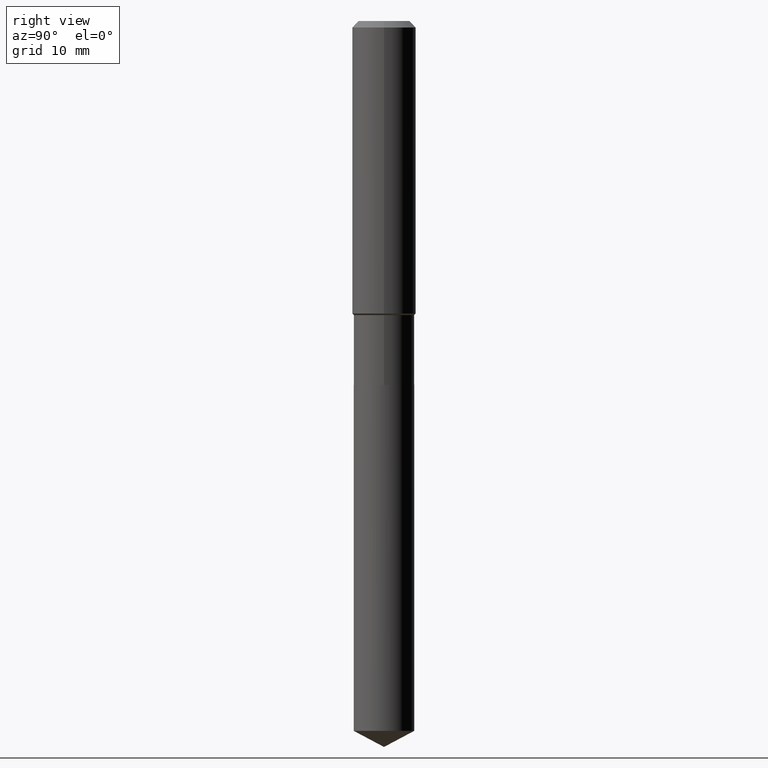
[diagram: clean part render]
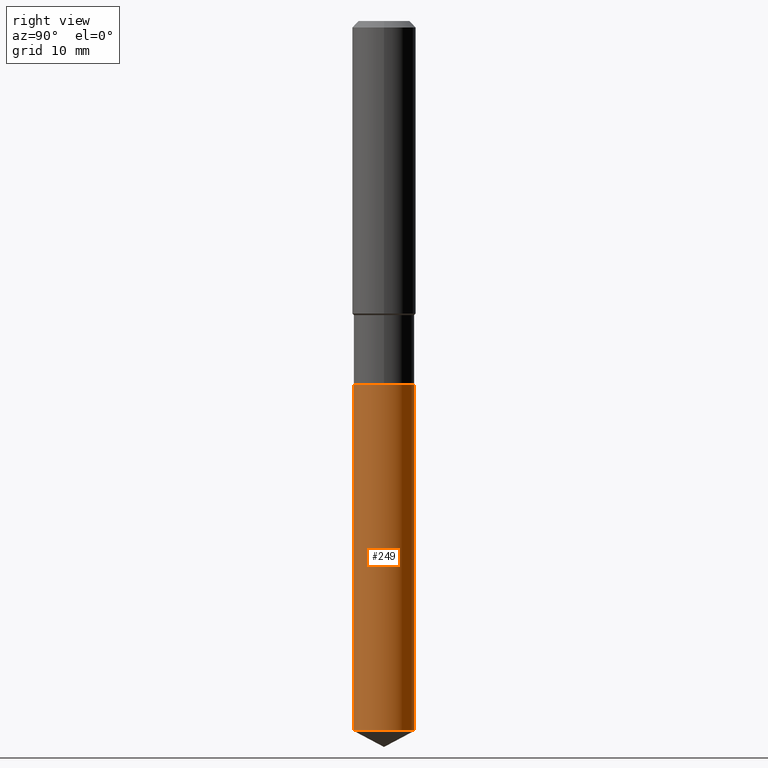
[diagram: same view with one face highlighted and labeled with its STEP entity id]
A machine part, right view. The second image highlights one B-rep face of the part: STEP entity #249.
In plain terms, the highlighted cylindrical surface (edge-blend (fillet) strip) has radius 3.7998 mm, axis along (-0, 0, 1).
Its self-contained STEP definition (entity closure, byte-faithful):
#11 = ORIENTED_EDGE ( 'NONE', *, *, #339, .T. ) ;
#13 = CYLINDRICAL_SURFACE ( 'NONE', #444, 0.1496000000000000107 ) ;
#24 = VERTEX_POINT ( 'NONE', #274 ) ;
#42 = DIRECTION ( 'NONE',  ( -6.982962677686266711E-15, -1.000000000000000000, 3.652203200085913145E-15 ) ) ;
#47 = DIRECTION ( 'NONE',  ( -6.982962677686266711E-15, -1.000000000000000000, 3.652203200085913145E-15 ) ) ;
#72 = AXIS2_PLACEMENT_3D ( 'NONE', #241, #163, #325 ) ;
#79 = CARTESIAN_POINT ( 'NONE',  ( -1.044651216581780009E-15, -0.1496000000000122510, -3.503156269023442793 ) ) ;
#83 = VECTOR ( 'NONE', #257, 39.37007874015748143 ) ;
#109 = ORIENTED_EDGE ( 'NONE', *, *, #210, .F. ) ;
#117 = DIRECTION ( 'NONE',  ( -2.445453622269776178E-29, 3.491503083074156902E-15, 1.000000000000000000 ) ) ;
#143 = EDGE_LOOP ( 'NONE', ( #11, #237, #409, #109 ) ) ;
#163 = DIRECTION ( 'NONE',  ( -2.445453622269775898E-29, 3.491503083074156902E-15, 1.000000000000000000 ) ) ;
#170 = CARTESIAN_POINT ( 'NONE',  ( 4.390350147744175670E-29, -6.268256447625099205E-15, -1.795300000000000118 ) ) ;
#199 = DIRECTION ( 'NONE',  ( -2.445453622269775898E-29, 3.491503083074156902E-15, 1.000000000000000000 ) ) ;
#204 = CARTESIAN_POINT ( 'NONE',  ( 8.566833447143701584E-29, -1.223124187636797631E-14, -3.503156269023443237 ) ) ;
#210 = EDGE_CURVE ( 'NONE', #318, #314, #289, .T. ) ;
#237 = ORIENTED_EDGE ( 'NONE', *, *, #425, .T. ) ;
#241 = CARTESIAN_POINT ( 'NONE',  ( 4.390350147744175670E-29, -6.268256447625099205E-15, -1.795300000000000118 ) ) ;
#242 = LINE ( 'NONE', #283, #320 ) ;
#249 = ADVANCED_FACE ( 'NONE', ( #392 ), #13, .T. ) ;
#257 = DIRECTION ( 'NONE',  ( -2.445453622269776178E-29, 3.491503083074156902E-15, 1.000000000000000000 ) ) ;
#274 = CARTESIAN_POINT ( 'NONE',  ( 1.062971932697195743E-15, 0.1495999999999937102, -1.795300000000000562 ) ) ;
#283 = CARTESIAN_POINT ( 'NONE',  ( 1.062971932697153933E-15, 0.1495999999999937657, -1.795300000000000562 ) ) ;
#287 = CIRCLE ( 'NONE', #72, 0.1496000000000000107 ) ;
#289 = LINE ( 'NONE', #399, #83 ) ;
#308 = VERTEX_POINT ( 'NONE', #483 ) ;
#314 = VERTEX_POINT ( 'NONE', #447 ) ;
#318 = VERTEX_POINT ( 'NONE', #79 ) ;
#320 = VECTOR ( 'NONE', #117, 39.37007874015748143 ) ;
#324 = EDGE_CURVE ( 'NONE', #314, #24, #287, .T. ) ;
#325 = DIRECTION ( 'NONE',  ( -6.982962677686265922E-15, -1.000000000000000000, 3.652203200085913145E-15 ) ) ;
#339 = EDGE_CURVE ( 'NONE', #318, #308, #383, .T. ) ;
#383 = CIRCLE ( 'NONE', #411, 0.1496000000000000107 ) ;
#392 = FACE_OUTER_BOUND ( 'NONE', #143, .T. ) ;
#399 = CARTESIAN_POINT ( 'NONE',  ( -1.044651216581821622E-15, -0.1496000000000062835, -1.795299999999999452 ) ) ;
#409 = ORIENTED_EDGE ( 'NONE', *, *, #324, .F. ) ;
#411 = AXIS2_PLACEMENT_3D ( 'NONE', #204, #199, #42 ) ;
#425 = EDGE_CURVE ( 'NONE', #308, #24, #242, .T. ) ;
#444 = AXIS2_PLACEMENT_3D ( 'NONE', #170, #470, #47 ) ;
#447 = CARTESIAN_POINT ( 'NONE',  ( -1.044651216581821425E-15, -0.1496000000000062835, -1.795299999999999452 ) ) ;
#470 = DIRECTION ( 'NONE',  ( -2.445453622269775898E-29, 3.491503083074156902E-15, 1.000000000000000000 ) ) ;
#483 = CARTESIAN_POINT ( 'NONE',  ( 1.062971932697195546E-15, 0.1495999999999878260, -3.503156269023444125 ) ) ;